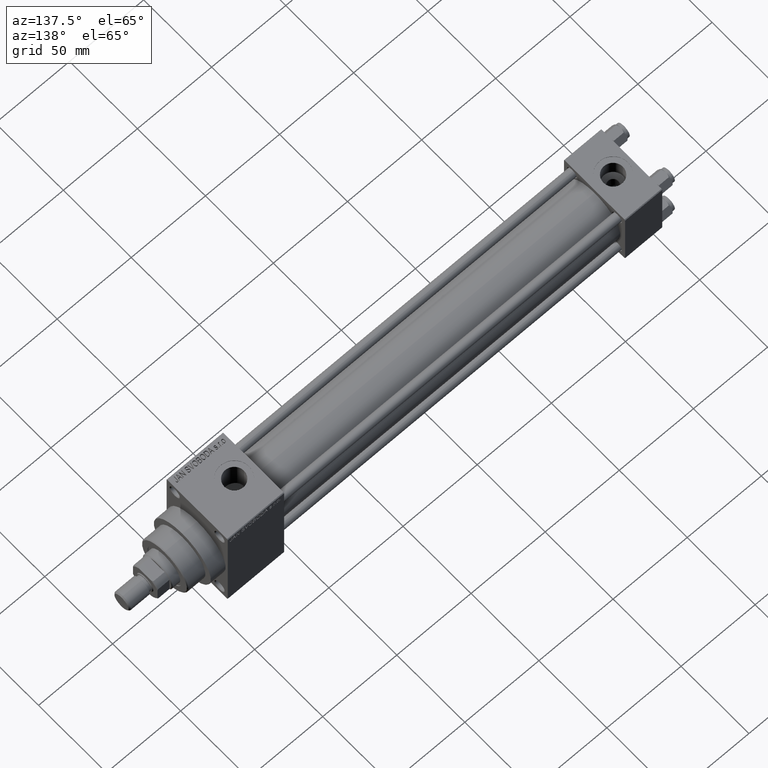
[diagram: clean part render]
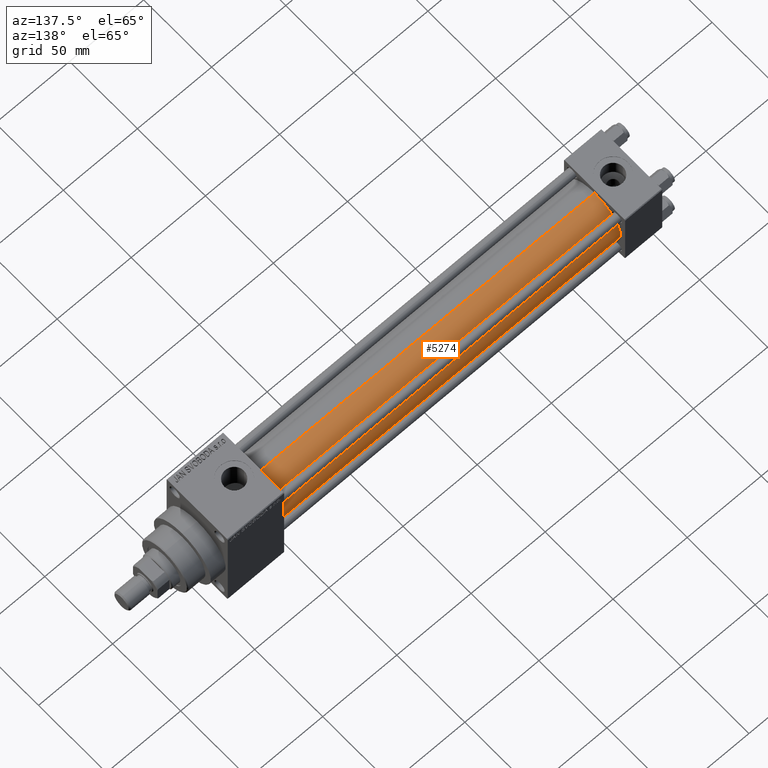
[diagram: same view with one face highlighted and labeled with its STEP entity id]
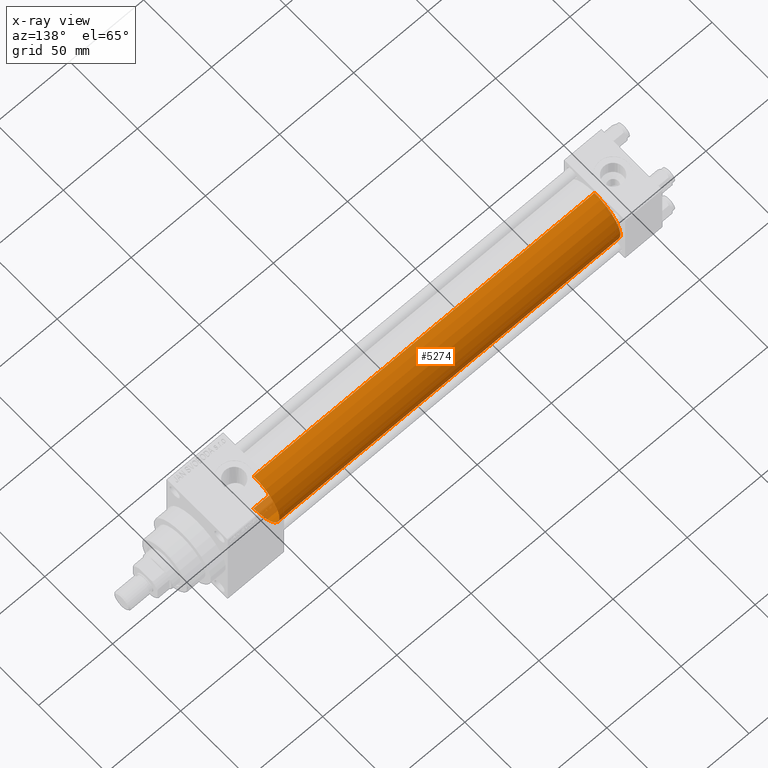
[diagram: x-ray of the same camera — body ghosted, the highlighted face saturated]
A machine part, auxiliary view. The second image highlights one B-rep face of the part: STEP entity #5274.
The next image is the same camera in x-ray: the body ghosted, the highlighted face saturated — about 1% of this face is hidden behind the body in this view.
In plain terms, the highlighted cylindrical surface (partial cylindrical patch) has radius 19 mm, axis along (-1, -0, -0).
Its self-contained STEP definition (entity closure, byte-faithful):
#570 = CARTESIAN_POINT ( 'NONE',  ( 24.99999999999999289, -2.602085213965210642E-15, 0.000000000000000000 ) ) ;
#2205 = VECTOR ( 'NONE', #20299, 1000.000000000000000 ) ;
#3356 = CARTESIAN_POINT ( 'NONE',  ( 255.0000000000000000, -2.602085213965210642E-15, 0.000000000000000000 ) ) ;
#3457 = CARTESIAN_POINT ( 'NONE',  ( 255.0000000000000000, -2.602085213965210642E-15, 0.000000000000000000 ) ) ;
#3479 = DIRECTION ( 'NONE',  ( -1.000000000000000000, -0.000000000000000000, -0.000000000000000000 ) ) ;
#3598 = DIRECTION ( 'NONE',  ( 0.000000000000000000, 0.000000000000000000, 1.000000000000000000 ) ) ;
#5274 = ADVANCED_FACE ( 'NONE', ( #32471 ), #25716, .T. ) ;
#5631 = LINE ( 'NONE', #19354, #2205 ) ;
#6732 = CARTESIAN_POINT ( 'NONE',  ( 24.99999999999999289, -2.752562955852396712E-16, -19.00000000000000000 ) ) ;
#8491 = EDGE_CURVE ( 'NONE', #32536, #44122, #40773, .T. ) ;
#11385 = DIRECTION ( 'NONE',  ( 1.000000000000000000, 0.000000000000000000, 0.000000000000000000 ) ) ;
#12435 = EDGE_CURVE ( 'NONE', #32536, #15381, #27372, .T. ) ;
#12986 = ORIENTED_EDGE ( 'NONE', *, *, #12435, .F. ) ;
#13292 = DIRECTION ( 'NONE',  ( -1.000000000000000000, -0.000000000000000000, -0.000000000000000000 ) ) ;
#14939 = AXIS2_PLACEMENT_3D ( 'NONE', #3356, #13292, #3598 ) ;
#15192 = ORIENTED_EDGE ( 'NONE', *, *, #8491, .T. ) ;
#15239 = DIRECTION ( 'NONE',  ( 0.000000000000000000, 0.000000000000000000, 1.000000000000000000 ) ) ;
#15381 = VERTEX_POINT ( 'NONE', #43008 ) ;
#17703 = EDGE_CURVE ( 'NONE', #15381, #18219, #5631, .T. ) ;
#18219 = VERTEX_POINT ( 'NONE', #18709 ) ;
#18376 = DIRECTION ( 'NONE',  ( 1.000000000000000000, -0.000000000000000000, 0.000000000000000000 ) ) ;
#18709 = CARTESIAN_POINT ( 'NONE',  ( 24.99999999999999289, -2.602085213965210642E-15, 19.00000000000000000 ) ) ;
#18869 = CARTESIAN_POINT ( 'NONE',  ( 255.0000000000000000, -2.752562955852396712E-16, -19.00000000000000000 ) ) ;
#19354 = CARTESIAN_POINT ( 'NONE',  ( 255.0000000000000000, -2.602085213965210642E-15, 19.00000000000000000 ) ) ;
#20299 = DIRECTION ( 'NONE',  ( -1.000000000000000000, -0.000000000000000000, -0.000000000000000000 ) ) ;
#25716 = CYLINDRICAL_SURFACE ( 'NONE', #14939, 19.00000000000000000 ) ;
#26828 = AXIS2_PLACEMENT_3D ( 'NONE', #570, #18376, #15239 ) ;
#27372 = CIRCLE ( 'NONE', #46591, 19.00000000000000000 ) ;
#27429 = EDGE_CURVE ( 'NONE', #44122, #18219, #36833, .T. ) ;
#29536 = VECTOR ( 'NONE', #3479, 1000.000000000000000 ) ;
#29944 = ORIENTED_EDGE ( 'NONE', *, *, #17703, .F. ) ;
#32471 = FACE_OUTER_BOUND ( 'NONE', #47287, .T. ) ;
#32536 = VERTEX_POINT ( 'NONE', #37486 ) ;
#32808 = DIRECTION ( 'NONE',  ( 0.000000000000000000, 0.000000000000000000, -1.000000000000000000 ) ) ;
#36833 = CIRCLE ( 'NONE', #26828, 19.00000000000000000 ) ;
#37486 = CARTESIAN_POINT ( 'NONE',  ( 255.0000000000000000, -2.752562955852396712E-16, -19.00000000000000000 ) ) ;
#40773 = LINE ( 'NONE', #18869, #29536 ) ;
#43008 = CARTESIAN_POINT ( 'NONE',  ( 255.0000000000000000, -2.602085213965210642E-15, 19.00000000000000000 ) ) ;
#44122 = VERTEX_POINT ( 'NONE', #6732 ) ;
#46591 = AXIS2_PLACEMENT_3D ( 'NONE', #3457, #11385, #32808 ) ;
#46776 = ORIENTED_EDGE ( 'NONE', *, *, #27429, .T. ) ;
#47287 = EDGE_LOOP ( 'NONE', ( #12986, #15192, #46776, #29944 ) ) ;